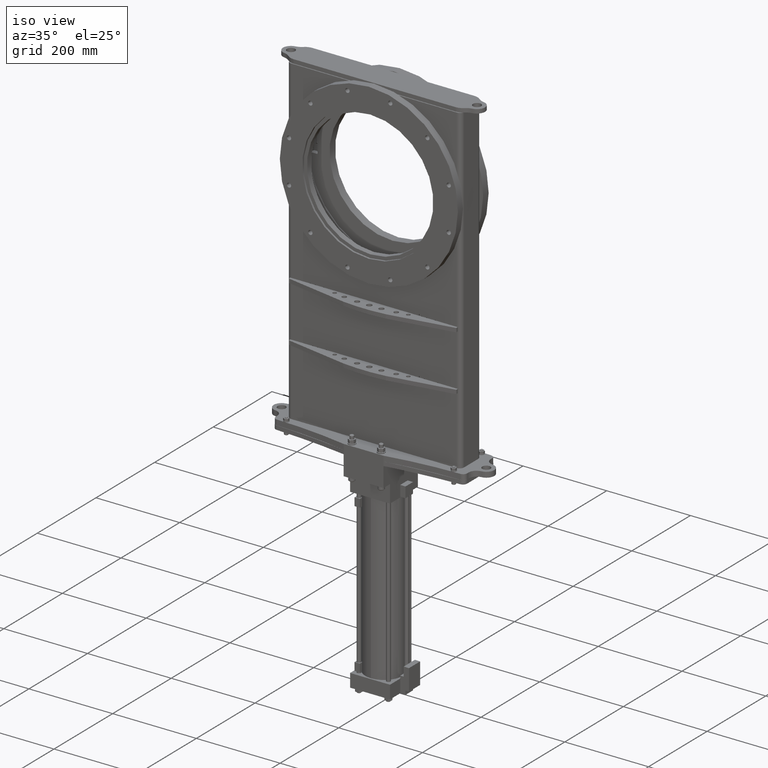
[diagram: clean part render]
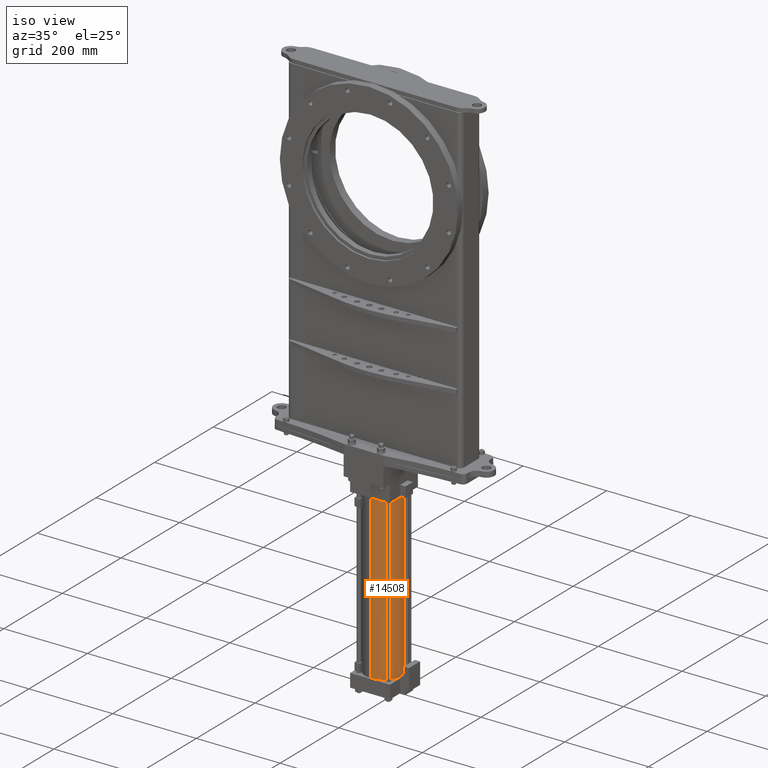
[diagram: same view with one face highlighted and labeled with its STEP entity id]
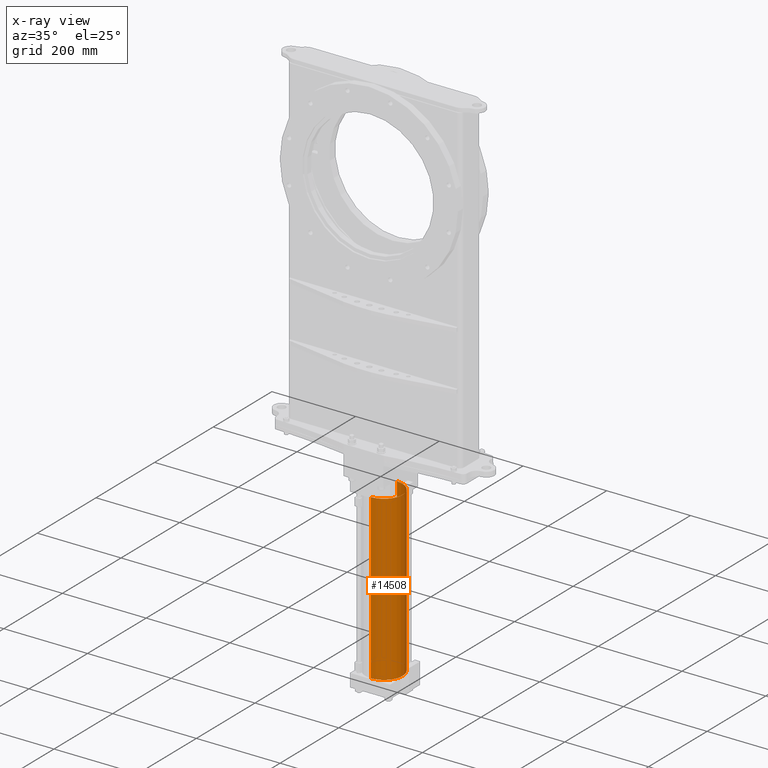
[diagram: x-ray of the same camera — body ghosted, the highlighted face saturated]
A machine part, iso view. The second image highlights one B-rep face of the part: STEP entity #14508.
The next image is the same camera in x-ray: the body ghosted, the highlighted face saturated — about 0% of this face is hidden behind the body in this view.
In plain terms, the highlighted cylindrical surface (edge-blend (fillet) strip) has radius 44.45 mm, axis along (0, 0, 1).
Its self-contained STEP definition (entity closure, byte-faithful):
#380 = LINE ( 'NONE', #22347, #16184 ) ;
#1323 = CARTESIAN_POINT ( 'NONE',  ( 3.964940177197132700E-016, -0.03510000000000340600, -26.62600000000000100 ) ) ;
#2235 = DIRECTION ( 'NONE',  ( 5.030698080332740600E-016, 1.000000000000000000, 0.0000000000000000000 ) ) ;
#3256 = DIRECTION ( 'NONE',  ( 5.030698080332740600E-016, 1.000000000000000000, 0.0000000000000000000 ) ) ;
#4053 = CARTESIAN_POINT ( 'NONE',  ( -7.218046600870998700E-016, -1.785100000000009200, -42.02555600000000200 ) ) ;
#4979 = VERTEX_POINT ( 'NONE', #1323 ) ;
#5827 = CIRCLE ( 'NONE', #5881, 1.750000000000000200 ) ;
#5881 = AXIS2_PLACEMENT_3D ( 'NONE', #4053, #20071, #8167 ) ;
#6585 = DIRECTION ( 'NONE',  ( 1.545021906791233900E-017, 3.682666505295027900E-016, 1.000000000000000000 ) ) ;
#7805 = CYLINDRICAL_SURFACE ( 'NONE', #10041, 1.750000000000000200 ) ;
#8167 = DIRECTION ( 'NONE',  ( -5.030698080332740600E-016, -1.000000000000000000, 0.0000000000000000000 ) ) ;
#10041 = AXIS2_PLACEMENT_3D ( 'NONE', #19465, #18027, #2235 ) ;
#10958 = VECTOR ( 'NONE', #6585, 39.37007874015748100 ) ;
#10994 = CARTESIAN_POINT ( 'NONE',  ( 2.775307608454213500E-016, -0.03510000000000913800, -42.02555600000000200 ) ) ;
#11287 = FACE_OUTER_BOUND ( 'NONE', #22232, .T. ) ;
#11463 = DIRECTION ( 'NONE',  ( 1.545021906791233900E-017, 3.682666505295028400E-016, 1.000000000000000000 ) ) ;
#11482 = EDGE_CURVE ( 'NONE', #15407, #4979, #20716, .T. ) ;
#12582 = CARTESIAN_POINT ( 'NONE',  ( 1.571151833787456200E-016, -0.03510000000000913800, -42.11955600000000300 ) ) ;
#14419 = ORIENTED_EDGE ( 'NONE', *, *, #23298, .F. ) ;
#14508 = ADVANCED_FACE ( 'NONE', ( #11287 ), #7805, .T. ) ;
#14989 = CARTESIAN_POINT ( 'NONE',  ( -1.697526757121825800E-015, -3.535100000000003500, -26.62600000000000100 ) ) ;
#15407 = VERTEX_POINT ( 'NONE', #14989 ) ;
#16184 = VECTOR ( 'NONE', #18732, 39.37007874015748100 ) ;
#16967 = LINE ( 'NONE', #12582, #10958 ) ;
#18027 = DIRECTION ( 'NONE',  ( 1.545021906791233900E-017, 3.682666505295028400E-016, 1.000000000000000000 ) ) ;
#18732 = DIRECTION ( 'NONE',  ( 1.545021906791233900E-017, 3.682666505295027900E-016, 1.000000000000000000 ) ) ;
#19465 = CARTESIAN_POINT ( 'NONE',  ( -7.232569806794842500E-016, -1.785100000000009200, -42.11955600000000300 ) ) ;
#19511 = ORIENTED_EDGE ( 'NONE', *, *, #25987, .F. ) ;
#20071 = DIRECTION ( 'NONE',  ( -1.545021906791233900E-017, -3.682666505295028400E-016, -1.000000000000000000 ) ) ;
#20716 = CIRCLE ( 'NONE', #25837, 1.750000000000000200 ) ;
#20883 = EDGE_CURVE ( 'NONE', #22633, #4979, #16967, .T. ) ;
#21230 = CARTESIAN_POINT ( 'NONE',  ( -4.838781463385165300E-016, -1.785100000000003700, -26.62600000000000100 ) ) ;
#22232 = EDGE_LOOP ( 'NONE', ( #19511, #14419, #22910, #25940 ) ) ;
#22347 = CARTESIAN_POINT ( 'NONE',  ( -1.817942334588500700E-015, -3.535100000000009700, -42.11955600000000300 ) ) ;
#22374 = VERTEX_POINT ( 'NONE', #24027 ) ;
#22633 = VERTEX_POINT ( 'NONE', #10994 ) ;
#22910 = ORIENTED_EDGE ( 'NONE', *, *, #20883, .T. ) ;
#23298 = EDGE_CURVE ( 'NONE', #22633, #22374, #5827, .T. ) ;
#24027 = CARTESIAN_POINT ( 'NONE',  ( -1.697526757121826800E-015, -3.535100000000009700, -42.02555600000000200 ) ) ;
#25837 = AXIS2_PLACEMENT_3D ( 'NONE', #21230, #11463, #3256 ) ;
#25940 = ORIENTED_EDGE ( 'NONE', *, *, #11482, .F. ) ;
#25987 = EDGE_CURVE ( 'NONE', #22374, #15407, #380, .T. ) ;